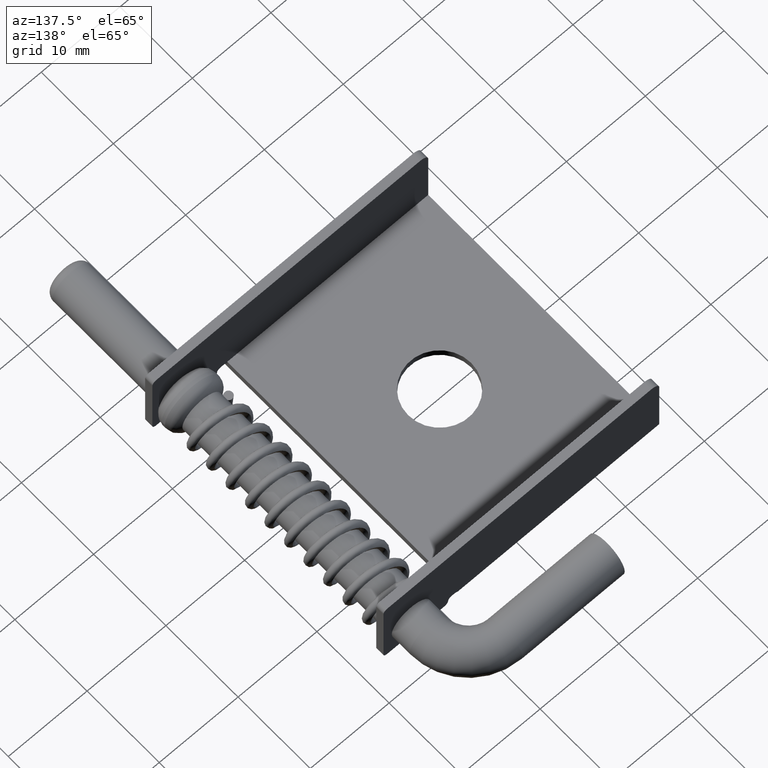
[diagram: clean part render]
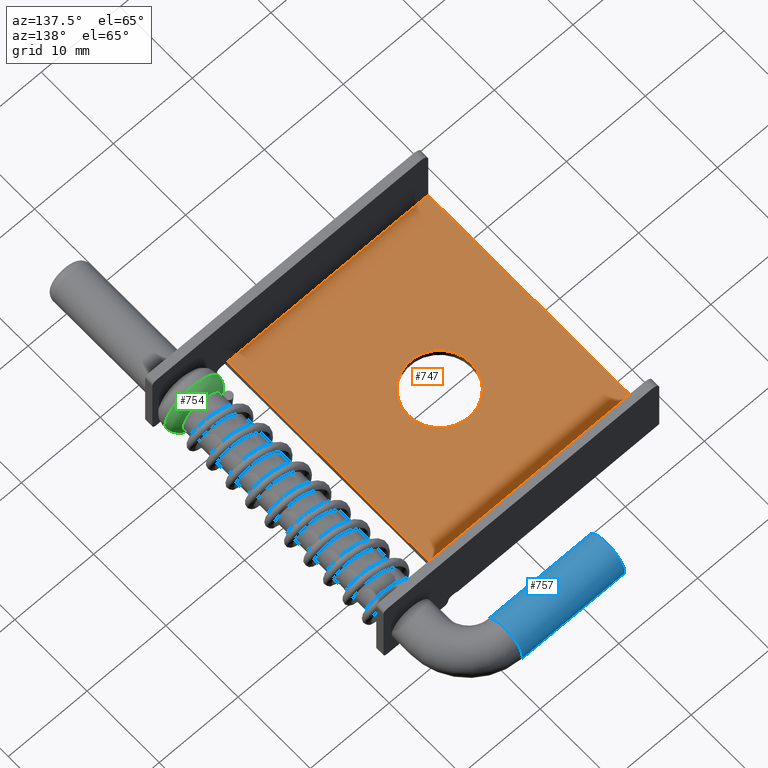
[diagram: same view with three faces highlighted in distinct colors, each labeled with its STEP entity id]
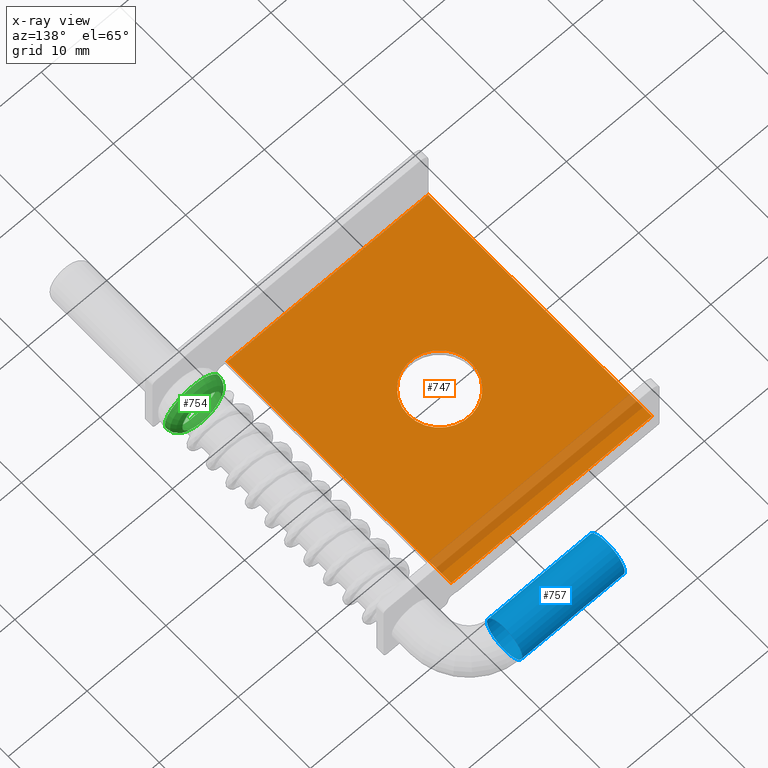
[diagram: x-ray of the same camera — body ghosted, the three highlighted faces saturated]
A machine part, auxiliary view with three faces highlighted in distinct colors.
The next image is the same camera in x-ray (body ghosted, the three faces saturated) — at least one of them is partly hidden behind the body in this view.
Their STEP definitions:

[orange] entity #747 — the highlighted planar face has unit normal (0, 0, 1).
#38=PLANE('',#829);
#60=LINE('',#1155,#114);
#72=LINE('',#1204,#126);
#81=LINE('',#1225,#135);
#89=LINE('',#1249,#143);
#114=VECTOR('',#907,31.);
#126=VECTOR('',#941,31.);
#135=VECTOR('',#962,25.5);
#143=VECTOR('',#986,25.5);
#163=FACE_BOUND('',#258,.T.);
#203=FACE_OUTER_BOUND('',#257,.T.);
#257=EDGE_LOOP('',(#662,#663,#664,#665));
#258=EDGE_LOOP('',(#666));
#312=CIRCLE('',#828,4.);
#348=VERTEX_POINT('',#1152);
#349=VERTEX_POINT('',#1154);
#364=VERTEX_POINT('',#1201);
#365=VERTEX_POINT('',#1203);
#383=VERTEX_POINT('',#1282);
#422=EDGE_CURVE('',#348,#349,#60,.T.);
#442=EDGE_CURVE('',#364,#365,#72,.T.);
#454=EDGE_CURVE('',#348,#365,#81,.T.);
#467=EDGE_CURVE('',#364,#349,#89,.T.);
#482=EDGE_CURVE('',#383,#383,#312,.T.);
#662=ORIENTED_EDGE('',*,*,#467,.T.);
#663=ORIENTED_EDGE('',*,*,#422,.F.);
#664=ORIENTED_EDGE('',*,*,#454,.T.);
#665=ORIENTED_EDGE('',*,*,#442,.F.);
#666=ORIENTED_EDGE('',*,*,#482,.T.);
#747=ADVANCED_FACE('',(#203,#163),#38,.T.);
#828=AXIS2_PLACEMENT_3D('',#1283,#1034,#1035);
#829=AXIS2_PLACEMENT_3D('',#1284,#1036,#1037);
#907=DIRECTION('',(-3.36431219583381E-16,1.,0.));
#941=DIRECTION('',(2.86509167645202E-16,-1.,0.));
#962=DIRECTION('',(1.,0.,0.));
#986=DIRECTION('',(-1.,-6.34413156928661E-17,0.));
#1034=DIRECTION('center_axis',(0.,0.,-1.));
#1035=DIRECTION('ref_axis',(-1.,-8.7076315656875E-17,0.));
#1036=DIRECTION('center_axis',(0.,0.,1.));
#1037=DIRECTION('ref_axis',(1.,0.,0.));
#1152=CARTESIAN_POINT('',(-17.5,-15.5,1.));
#1154=CARTESIAN_POINT('',(-17.5,15.5,1.));
#1155=CARTESIAN_POINT('',(-17.5,8.25,1.));
#1201=CARTESIAN_POINT('',(7.99999999999999,15.5,1.));
#1203=CARTESIAN_POINT('',(8.00000000000001,-15.5,1.));
#1204=CARTESIAN_POINT('',(8.,-7.75,1.));
#1225=CARTESIAN_POINT('',(-8.75,-15.5,1.));
#1249=CARTESIAN_POINT('',(8.75,15.5,1.));
#1282=CARTESIAN_POINT('',(-0.749999999999998,8.38163982286442E-16,1.));
#1283=CARTESIAN_POINT('Origin',(-4.75,0.,1.));
#1284=CARTESIAN_POINT('Origin',(9.79608551139844E-16,2.4980018054066E-15,
1.));

[blue] entity #757 — the highlighted cylindrical surface (bore or boss wall) has radius 2.45 mm, axis along (1, -0, 0).
#171=FACE_BOUND('',#276,.T.);
#213=FACE_OUTER_BOUND('',#275,.T.);
#275=EDGE_LOOP('',(#686));
#276=EDGE_LOOP('',(#687));
#320=CIRCLE('',#846,2.45);
#321=CIRCLE('',#848,2.45);
#391=VERTEX_POINT('',#1308);
#392=VERTEX_POINT('',#1311);
#490=EDGE_CURVE('',#391,#391,#320,.T.);
#491=EDGE_CURVE('',#392,#392,#321,.T.);
#686=ORIENTED_EDGE('',*,*,#490,.F.);
#687=ORIENTED_EDGE('',*,*,#491,.T.);
#715=CYLINDRICAL_SURFACE('',#847,2.45);
#757=ADVANCED_FACE('',(#213,#171),#715,.T.);
#846=AXIS2_PLACEMENT_3D('',#1309,#1070,#1071);
#847=AXIS2_PLACEMENT_3D('',#1310,#1072,#1073);
#848=AXIS2_PLACEMENT_3D('',#1312,#1074,#1075);
#1070=DIRECTION('center_axis',(1.,-6.12323399573677E-17,0.));
#1071=DIRECTION('ref_axis',(6.12323399573677E-17,1.,0.));
#1072=DIRECTION('center_axis',(1.,-3.41607084500048E-16,0.));
#1073=DIRECTION('ref_axis',(3.41607084500048E-16,1.,0.));
#1074=DIRECTION('center_axis',(1.,-6.12323399573677E-17,0.));
#1075=DIRECTION('ref_axis',(6.12323399573677E-17,1.,0.));
#1308=CARTESIAN_POINT('',(9.,21.55,3.5));
#1309=CARTESIAN_POINT('Origin',(9.00000000000001,24.,3.5));
#1310=CARTESIAN_POINT('Origin',(-4.,24.,3.5));
#1311=CARTESIAN_POINT('',(-4.,21.55,3.5));
#1312=CARTESIAN_POINT('Origin',(-4.,24.,3.5));

[green] entity #754 — the highlighted toroidal blend (fillet) surface has major radius 2.2 mm and minor (blend) radius 1.3 mm.
#14=TOROIDAL_SURFACE('',#841,2.20000000000001,1.3);
#168=FACE_BOUND('',#270,.T.);
#210=FACE_OUTER_BOUND('',#269,.T.);
#269=EDGE_LOOP('',(#680));
#270=EDGE_LOOP('',(#681));
#317=CIRCLE('',#840,3.50000000000001);
#318=CIRCLE('',#842,2.45);
#388=VERTEX_POINT('',#1299);
#389=VERTEX_POINT('',#1302);
#487=EDGE_CURVE('',#388,#388,#317,.T.);
#488=EDGE_CURVE('',#389,#389,#318,.T.);
#680=ORIENTED_EDGE('',*,*,#487,.T.);
#681=ORIENTED_EDGE('',*,*,#488,.F.);
#754=ADVANCED_FACE('',(#210,#168),#14,.T.);
#840=AXIS2_PLACEMENT_3D('',#1300,#1058,#1059);
#841=AXIS2_PLACEMENT_3D('',#1301,#1060,#1061);
#842=AXIS2_PLACEMENT_3D('',#1303,#1062,#1063);
#1058=DIRECTION('center_axis',(0.,1.,0.));
#1059=DIRECTION('ref_axis',(-1.,0.,0.));
#1060=DIRECTION('center_axis',(0.,-1.,0.));
#1061=DIRECTION('ref_axis',(-1.,0.,0.));
#1062=DIRECTION('center_axis',(-1.85037170770859E-16,1.,0.));
#1063=DIRECTION('ref_axis',(1.,0.,0.));
#1299=CARTESIAN_POINT('',(17.5,-13.7757350822173,3.5));
#1300=CARTESIAN_POINT('Origin',(14.,-13.7757350822173,3.5));
#1301=CARTESIAN_POINT('Origin',(14.,-13.7757350822173,3.5));
#1302=CARTESIAN_POINT('',(11.55,-12.5,3.5));
#1303=CARTESIAN_POINT('Origin',(14.,-12.5,3.5));